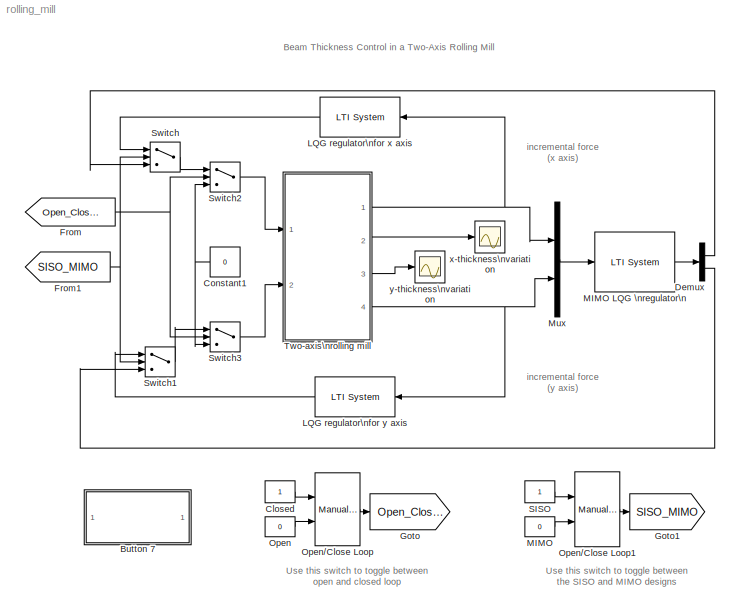
MODEL rolling_mill
KIND model
CONFIG AbsTol = auto
CONFIG FixedStep = auto
CONFIG MaxStep = auto
CONFIG MinStep = auto
CONFIG PreLoadFcn = load rolling_mill
CONFIG RelTol = 1e-3
CONFIG Solver = ode45
CONFIG SolverMode = Auto
CONFIG StartTime = 0.0
CONFIG StopTime = 500
BLOCK [SubSystem] Button 7
  MaskDisplay = disp('Double click here\\nfor details\\nabout the design')
  MaskIconFrame = on
  MaskIconOpaque = on
  MaskIconRotate = none
  MaskIconUnits = autoscale
  OpenFcn = milldemo_sls
  Ports = []
  RTWFcnNameOpts = Auto
  RTWFileNameOpts = Auto
  RTWSystemCode = Auto
  ShowPortLabels = off
  TreatAsAtomicUnit = off
BLOCK [Constant] Closed
  Value = 1
  VectorParams1D = on
BLOCK [Constant] Constant1
  Value = 0
  VectorParams1D = on
BLOCK [Demux] Demux
  BusSelectionMode = off
  Outputs = 2
  Ports = [1, 2]
BLOCK [From] From
  GotoTag = Open_Closed
BLOCK [From] From1
  GotoTag = SISO_MIMO
BLOCK [Goto] Goto
  GotoTag = Open_Closed
  TagVisibility = local
BLOCK [Goto] Goto1
  GotoTag = SISO_MIMO
  TagVisibility = local
BLOCK [Reference] LQG regulator\nfor x axis  REF=cstblocks/LTI System
  IC = 0
  Ports = [1, 1]
  SourceBlock = cstblocks/LTI System
  SourceType = LTI Block
  sys = Regx
BLOCK [Reference] LQG regulator\nfor y axis  REF=cstblocks/LTI System
  IC = 0
  Ports = [1, 1]
  SourceBlock = cstblocks/LTI System
  SourceType = LTI Block
  sys = Regy
BLOCK [Constant] MIMO
  Value = 0
  VectorParams1D = on
BLOCK [Reference] MIMO LQG \nregulator\n  REF=cstblocks/LTI System
  IC = 0
  Ports = [1, 1]
  SourceBlock = cstblocks/LTI System
  SourceType = LTI Block
  sys = Regxy
BLOCK [Mux] Mux
  DisplayOption = bar
  Inputs = 2
  Ports = [2, 1]
BLOCK [Constant] Open
  Value = 0
  VectorParams1D = on
BLOCK [Reference] Open//Close Loop  REF=simulink3/Nonlinear/Manual Switch
  Ports = [2, 1]
  SourceBlock = simulink3/Nonlinear/Manual Switch
  SourceType = Manual Switch
  action = 0
  sw = 0
BLOCK [Reference] Open//Close Loop1  REF=simulink3/Nonlinear/Manual Switch
  Ports = [2, 1]
  SourceBlock = simulink3/Nonlinear/Manual Switch
  SourceType = Manual Switch
  action = 0
  sw = 1
BLOCK [Constant] SISO
  Value = 1
  VectorParams1D = on
BLOCK [Switch] Switch
  Threshold = 0.5
BLOCK [Switch] Switch1
  Threshold = 0.5
BLOCK [Switch] Switch2
  Threshold = 0.5
BLOCK [Switch] Switch3
  Threshold = 0.5
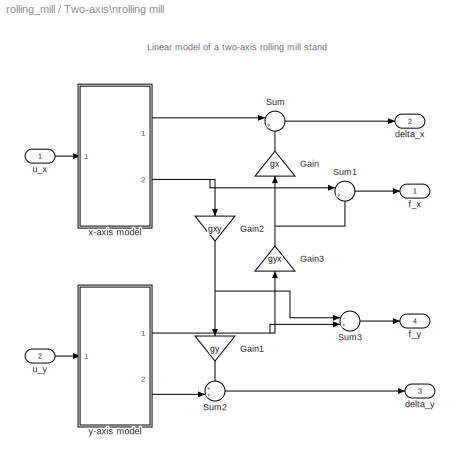
BLOCK [SubSystem] Two-axis\nrolling mill
  Ports = [2, 4]
  RTWFcnNameOpts = Auto
  RTWFileNameOpts = Auto
  RTWSystemCode = Auto
  ShowPortLabels = on
  TreatAsAtomicUnit = off
BLOCK [Gain] Two-axis\nrolling mill/Gain
  Gain = gx
  Multiplication = Element-wise(K.*u)
  SaturateOnIntegerOverflow = on
BLOCK [Gain] Two-axis\nrolling mill/Gain1
  Gain = gy
  Multiplication = Element-wise(K.*u)
  SaturateOnIntegerOverflow = on
BLOCK [Gain] Two-axis\nrolling mill/Gain2
  Gain = gxy
  Multiplication = Element-wise(K.*u)
  SaturateOnIntegerOverflow = on
BLOCK [Gain] Two-axis\nrolling mill/Gain3
  Gain = gyx
  Multiplication = Element-wise(K.*u)
  SaturateOnIntegerOverflow = on
BLOCK [Sum] Two-axis\nrolling mill/Sum
  IconShape = round
  Inputs = |++
  Ports = [2, 1]
  SaturateOnIntegerOverflow = on
BLOCK [Sum] Two-axis\nrolling mill/Sum1
  IconShape = round
  Inputs = |+-
  Ports = [2, 1]
  SaturateOnIntegerOverflow = on
BLOCK [Sum] Two-axis\nrolling mill/Sum2
  IconShape = round
  Inputs = ++|
  Ports = [2, 1]
  SaturateOnIntegerOverflow = on
BLOCK [Sum] Two-axis\nrolling mill/Sum3
  IconShape = round
  Inputs = -+|
  Ports = [2, 1]
  SaturateOnIntegerOverflow = on
BLOCK [Outport] Two-axis\nrolling mill/delta_x
  InitialOutput = []
  OutputWhenDisabled = held
  Port = 2
BLOCK [Outport] Two-axis\nrolling mill/delta_y
  InitialOutput = []
  OutputWhenDisabled = held
  Port = 3
BLOCK [Outport] Two-axis\nrolling mill/f_x
  InitialOutput = []
  OutputWhenDisabled = held
  Port = 1
BLOCK [Outport] Two-axis\nrolling mill/f_y
  InitialOutput = []
  OutputWhenDisabled = held
  Port = 4
BLOCK [Inport] Two-axis\nrolling mill/u_x
  Interpolate = on
  Port = 1
BLOCK [Inport] Two-axis\nrolling mill/u_y
  Interpolate = on
  Port = 2
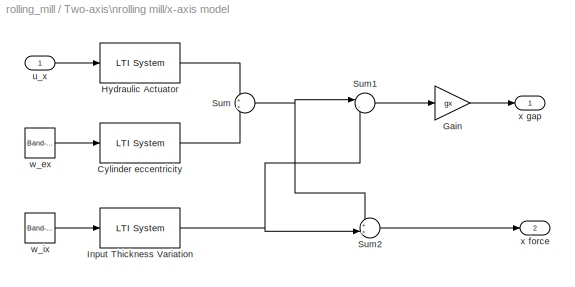
BLOCK [SubSystem] Two-axis\nrolling mill/x-axis model
  Ports = [1, 2]
  RTWFcnNameOpts = Auto
  RTWFileNameOpts = Auto
  RTWSystemCode = Auto
  ShowPortLabels = on
  TreatAsAtomicUnit = off
BLOCK [Reference] Two-axis\nrolling mill/x-axis model/Cylinder eccentricity  REF=cstblocks/LTI System
  IC = 0
  Ports = [1, 1]
  SourceBlock = cstblocks/LTI System
  SourceType = LTI Block
  sys = Fex
BLOCK [Gain] Two-axis\nrolling mill/x-axis model/Gain
  Gain = gx
  Multiplication = Element-wise(K.*u)
  SaturateOnIntegerOverflow = on
BLOCK [Reference] Two-axis\nrolling mill/x-axis model/Hydraulic Actuator  REF=cstblocks/LTI System
  IC = 0
  Ports = [1, 1]
  SourceBlock = cstblocks/LTI System
  SourceType = LTI Block
  sys = Hx
BLOCK [Reference] Two-axis\nrolling mill/x-axis model/Input Thickness Variation  REF=cstblocks/LTI System
  IC = 0
  Ports = [1, 1]
  SourceBlock = cstblocks/LTI System
  SourceType = LTI Block
  sys = Fix
BLOCK [Sum] Two-axis\nrolling mill/x-axis model/Sum
  IconShape = round
  Inputs = ++
  Ports = [2, 1]
  SaturateOnIntegerOverflow = on
BLOCK [Sum] Two-axis\nrolling mill/x-axis model/Sum1
  IconShape = round
  Inputs = |-+
  Ports = [2, 1]
  SaturateOnIntegerOverflow = on
BLOCK [Sum] Two-axis\nrolling mill/x-axis model/Sum2
  IconShape = round
  Inputs = ++|
  Ports = [2, 1]
  SaturateOnIntegerOverflow = on
BLOCK [Inport] Two-axis\nrolling mill/x-axis model/u_x
  Interpolate = on
  Port = 1
BLOCK [Reference] Two-axis\nrolling mill/x-axis model/w_ex  REF=simulink3/Sources/Band-Limited\nWhite Noise
  Cov = sqrt(1/0.01)
  Ports = [0, 1]
  SourceBlock = simulink3/Sources/Band-Limited\nWhite Noise
  SourceType = Continuous White Noise.
  Ts = 0.01
  VectorParams1D = on
  seed = [23341]
BLOCK [Reference] Two-axis\nrolling mill/x-axis model/w_ix  REF=simulink3/Sources/Band-Limited\nWhite Noise
  Cov = sqrt(1/0.01)
  Ports = [0, 1]
  SourceBlock = simulink3/Sources/Band-Limited\nWhite Noise
  SourceType = Continuous White Noise.
  Ts = 0.01
  VectorParams1D = on
  seed = [23341]
BLOCK [Outport] Two-axis\nrolling mill/x-axis model/x force
  InitialOutput = []
  OutputWhenDisabled = held
  Port = 2
BLOCK [Outport] Two-axis\nrolling mill/x-axis model/x gap
  InitialOutput = []
  OutputWhenDisabled = held
  Port = 1
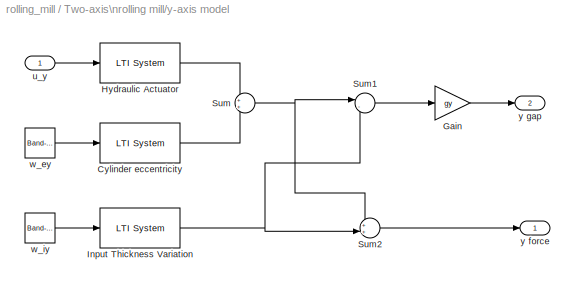
BLOCK [SubSystem] Two-axis\nrolling mill/y-axis model
  Ports = [1, 2]
  RTWFcnNameOpts = Auto
  RTWFileNameOpts = Auto
  RTWSystemCode = Auto
  ShowPortLabels = on
  TreatAsAtomicUnit = off
BLOCK [Reference] Two-axis\nrolling mill/y-axis model/Cylinder eccentricity  REF=cstblocks/LTI System
  IC = 0
  Ports = [1, 1]
  SourceBlock = cstblocks/LTI System
  SourceType = LTI Block
  sys = Fey
BLOCK [Gain] Two-axis\nrolling mill/y-axis model/Gain
  Gain = gy
  Multiplication = Element-wise(K.*u)
  SaturateOnIntegerOverflow = on
BLOCK [Reference] Two-axis\nrolling mill/y-axis model/Hydraulic Actuator  REF=cstblocks/LTI System
  IC = 0
  Ports = [1, 1]
  SourceBlock = cstblocks/LTI System
  SourceType = LTI Block
  sys = Hy
BLOCK [Reference] Two-axis\nrolling mill/y-axis model/Input Thickness Variation  REF=cstblocks/LTI System
  IC = 0
  Ports = [1, 1]
  SourceBlock = cstblocks/LTI System
  SourceType = LTI Block
  sys = Fiy
BLOCK [Sum] Two-axis\nrolling mill/y-axis model/Sum
  IconShape = round
  Inputs = ++
  Ports = [2, 1]
  SaturateOnIntegerOverflow = on
BLOCK [Sum] Two-axis\nrolling mill/y-axis model/Sum1
  IconShape = round
  Inputs = |-+
  Ports = [2, 1]
  SaturateOnIntegerOverflow = on
BLOCK [Sum] Two-axis\nrolling mill/y-axis model/Sum2
  IconShape = round
  Inputs = ++|
  Ports = [2, 1]
  SaturateOnIntegerOverflow = on
BLOCK [Inport] Two-axis\nrolling mill/y-axis model/u_y
  Interpolate = on
  Port = 1
BLOCK [Reference] Two-axis\nrolling mill/y-axis model/w_ey  REF=simulink3/Sources/Band-Limited\nWhite Noise
  Cov = sqrt(1/0.01)
  Ports = [0, 1]
  SourceBlock = simulink3/Sources/Band-Limited\nWhite Noise
  SourceType = Continuous White Noise.
  Ts = 0.01
  VectorParams1D = on
  seed = [23341]
BLOCK [Reference] Two-axis\nrolling mill/y-axis model/w_iy  REF=simulink3/Sources/Band-Limited\nWhite Noise
  Cov = sqrt(1/0.01)
  Ports = [0, 1]
  SourceBlock = simulink3/Sources/Band-Limited\nWhite Noise
  SourceType = Continuous White Noise.
  Ts = 0.01
  VectorParams1D = on
  seed = [23341]
BLOCK [Outport] Two-axis\nrolling mill/y-axis model/y force
  InitialOutput = []
  OutputWhenDisabled = held
  Port = 1
BLOCK [Outport] Two-axis\nrolling mill/y-axis model/y gap
  InitialOutput = []
  OutputWhenDisabled = held
  Port = 2
BLOCK [Scope] x-thickness\nvariation
  DataFormat = StructureWithTime
  Decimation = 1
  Floating = off
  Grid = on
  LimitDataPoints = on
  MaxDataPoints = 10000
  NumInputPorts = 1
  Ports = [1]
  SampleInput = off
  SampleTime = 0
  SaveName = ScopeData
  SaveToWorkspace = off
  TickLabels = OneTimeTick
  TimeRange = 20
  YMax = 0.8
  YMin = -0.8
  ZoomMode = on
BLOCK [Scope] y-thickness\nvariation
  DataFormat = StructureWithTime
  Decimation = 1
  Floating = off
  Grid = on
  LimitDataPoints = on
  MaxDataPoints = 10000
  NumInputPorts = 1
  Ports = [1]
  SampleInput = off
  SampleTime = 0
  SaveName = ScopeData1
  SaveToWorkspace = off
  TickLabels = OneTimeTick
  TimeRange = 20
  YMax = 0.6
  YMin = -0.8
  ZoomMode = on
LINE Closed:1 -> Open//Close Loop:1
NET Constant1:1 -> Switch2:3, Switch3:3
LINE Demux:1 -> Switch:3
LINE Demux:2 -> Switch1:3
NET From1:1 -> Switch1:2, Switch:2
NET From:1 -> Switch2:2, Switch3:2
LINE LQG regulator\nfor x axis:1 -> Switch:1
LINE LQG regulator\nfor y axis:1 -> Switch1:1
LINE MIMO LQG \nregulator\n:1 -> Demux:1
LINE MIMO:1 -> Open//Close Loop1:2
LINE Mux:1 -> MIMO LQG \nregulator\n:1
LINE Open//Close Loop1:1 -> Goto1:1
LINE Open//Close Loop:1 -> Goto:1
LINE Open:1 -> Open//Close Loop:2
LINE SISO:1 -> Open//Close Loop1:1
LINE Switch1:1 -> Switch3:1
LINE Switch2:1 -> Two-axis\nrolling mill:1
LINE Switch3:1 -> Two-axis\nrolling mill:2
LINE Switch:1 -> Switch2:1
LINE Two-axis\nrolling mill/Gain1:1 -> Two-axis\nrolling mill/Sum2:1
NET Two-axis\nrolling mill/Gain2:1 -> Two-axis\nrolling mill/Gain1:1, Two-axis\nrolling mill/Sum3:1
NET Two-axis\nrolling mill/Gain3:1 -> Two-axis\nrolling mill/Gain:1, Two-axis\nrolling mill/Sum1:2
LINE Two-axis\nrolling mill/Gain:1 -> Two-axis\nrolling mill/Sum:2
LINE Two-axis\nrolling mill/Sum1:1 -> Two-axis\nrolling mill/f_x:1
LINE Two-axis\nrolling mill/Sum2:1 -> Two-axis\nrolling mill/delta_y:1
LINE Two-axis\nrolling mill/Sum3:1 -> Two-axis\nrolling mill/f_y:1
LINE Two-axis\nrolling mill/Sum:1 -> Two-axis\nrolling mill/delta_x:1
LINE Two-axis\nrolling mill/u_x:1 -> Two-axis\nrolling mill/x-axis model:1
LINE Two-axis\nrolling mill/u_y:1 -> Two-axis\nrolling mill/y-axis model:1
LINE Two-axis\nrolling mill/x-axis model/Cylinder eccentricity:1 -> Two-axis\nrolling mill/x-axis model/Sum:2
LINE Two-axis\nrolling mill/x-axis model/Gain:1 -> Two-axis\nrolling mill/x-axis model/x gap:1
LINE Two-axis\nrolling mill/x-axis model/Hydraulic Actuator:1 -> Two-axis\nrolling mill/x-axis model/Sum:1
NET Two-axis\nrolling mill/x-axis model/Input Thickness Variation:1 -> Two-axis\nrolling mill/x-axis model/Sum1:2, Two-axis\nrolling mill/x-axis model/Sum2:2
LINE Two-axis\nrolling mill/x-axis model/Sum1:1 -> Two-axis\nrolling mill/x-axis model/Gain:1
LINE Two-axis\nrolling mill/x-axis model/Sum2:1 -> Two-axis\nrolling mill/x-axis model/x force:1
NET Two-axis\nrolling mill/x-axis model/Sum:1 -> Two-axis\nrolling mill/x-axis model/Sum1:1, Two-axis\nrolling mill/x-axis model/Sum2:1
LINE Two-axis\nrolling mill/x-axis model/u_x:1 -> Two-axis\nrolling mill/x-axis model/Hydraulic Actuator:1
LINE Two-axis\nrolling mill/x-axis model/w_ex:1 -> Two-axis\nrolling mill/x-axis model/Cylinder eccentricity:1
LINE Two-axis\nrolling mill/x-axis model/w_ix:1 -> Two-axis\nrolling mill/x-axis model/Input Thickness Variation:1
LINE Two-axis\nrolling mill/x-axis model:1 -> Two-axis\nrolling mill/Sum:1
NET Two-axis\nrolling mill/x-axis model:2 -> Two-axis\nrolling mill/Gain2:1, Two-axis\nrolling mill/Sum1:1
LINE Two-axis\nrolling mill/y-axis model/Cylinder eccentricity:1 -> Two-axis\nrolling mill/y-axis model/Sum:2
LINE Two-axis\nrolling mill/y-axis model/Gain:1 -> Two-axis\nrolling mill/y-axis model/y gap:1
LINE Two-axis\nrolling mill/y-axis model/Hydraulic Actuator:1 -> Two-axis\nrolling mill/y-axis model/Sum:1
NET Two-axis\nrolling mill/y-axis model/Input Thickness Variation:1 -> Two-axis\nrolling mill/y-axis model/Sum1:2, Two-axis\nrolling mill/y-axis model/Sum2:2
LINE Two-axis\nrolling mill/y-axis model/Sum1:1 -> Two-axis\nrolling mill/y-axis model/Gain:1
LINE Two-axis\nrolling mill/y-axis model/Sum2:1 -> Two-axis\nrolling mill/y-axis model/y force:1
NET Two-axis\nrolling mill/y-axis model/Sum:1 -> Two-axis\nrolling mill/y-axis model/Sum1:1, Two-axis\nrolling mill/y-axis model/Sum2:1
LINE Two-axis\nrolling mill/y-axis model/u_y:1 -> Two-axis\nrolling mill/y-axis model/Hydraulic Actuator:1
LINE Two-axis\nrolling mill/y-axis model/w_ey:1 -> Two-axis\nrolling mill/y-axis model/Cylinder eccentricity:1
LINE Two-axis\nrolling mill/y-axis model/w_iy:1 -> Two-axis\nrolling mill/y-axis model/Input Thickness Variation:1
NET Two-axis\nrolling mill/y-axis model:1 -> Two-axis\nrolling mill/Gain3:1, Two-axis\nrolling mill/Sum3:2
LINE Two-axis\nrolling mill/y-axis model:2 -> Two-axis\nrolling mill/Sum2:2
NET Two-axis\nrolling mill:1 -> LQG regulator\nfor x axis:1, Mux:1
LINE Two-axis\nrolling mill:2 -> x-thickness\nvariation:1
LINE Two-axis\nrolling mill:3 -> y-thickness\nvariation:1
NET Two-axis\nrolling mill:4 -> LQG regulator\nfor y axis:1, Mux:2
note: NET lines group one-source signal fan-out (src -> all destinations, sorted); 1:1 wires keep LINE
